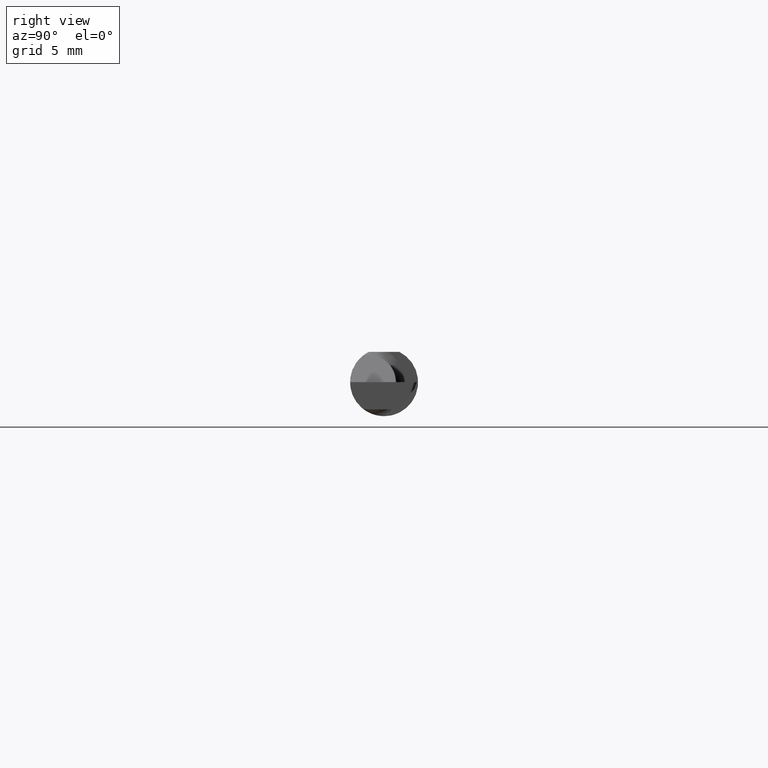
[diagram: clean part render]
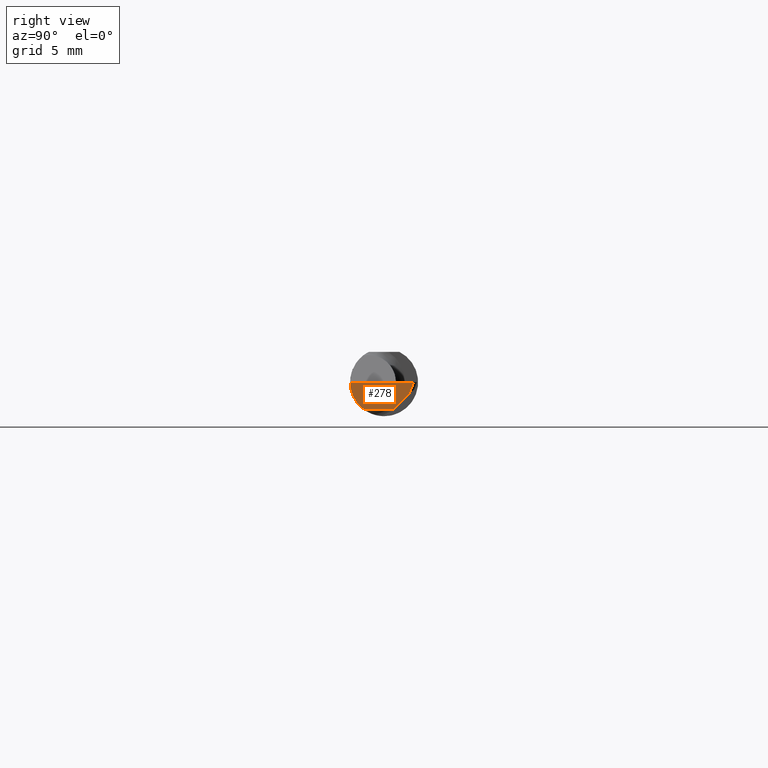
[diagram: same view with one face highlighted and labeled with its STEP entity id]
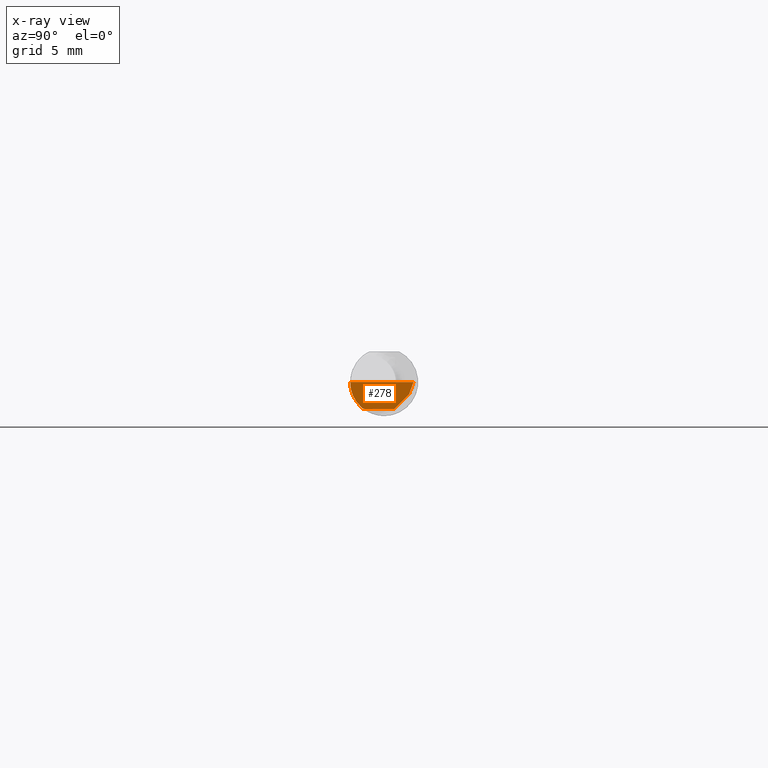
[diagram: x-ray of the same camera — body ghosted, the highlighted face saturated]
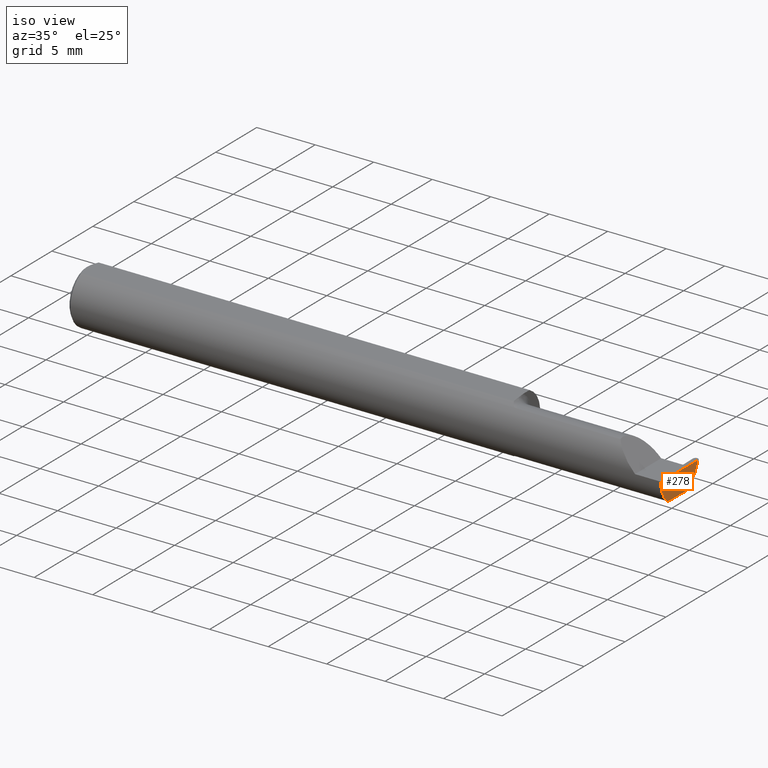
[diagram: same view with one face highlighted and labeled with its STEP entity id]
A machine part, right view. The second image highlights one B-rep face of the part: STEP entity #278.
The next image is the same camera in x-ray: the body ghosted, the highlighted face saturated — about 0% of this face is hidden behind the body in this view.
A second angle (iso view) of the same face is appended — the face is thin or edge-on in the first view.
In plain terms, the highlighted planar face has unit normal (-0.9992, 0.0174, 0.0349).
Its self-contained STEP definition (entity closure, byte-faithful):
#22 = FACE_OUTER_BOUND ( 'NONE', #651, .T. ) ;
#23 = EDGE_CURVE ( 'NONE', #565, #394, #87, .T. ) ;
#28 = VERTEX_POINT ( 'NONE', #691 ) ;
#33 = CARTESIAN_POINT ( 'NONE',  ( 1.996436576927335116, 0.02748456554894272708, -0.07500000000000002498 ) ) ;
#52 = DIRECTION ( 'NONE',  ( -0.03701368837992445593, -0.7066222423871552083, -0.7066222423871628688 ) ) ;
#55 = CARTESIAN_POINT ( 'NONE',  ( 1.996630704565214964, 0.03119062438263837597, -0.07129394116630433098 ) ) ;
#66 = DIRECTION ( 'NONE',  ( -0.01745240643727645827, -0.9998476951563912696, 0.000000000000000000 ) ) ;
#83 =( BOUNDED_CURVE ( )  B_SPLINE_CURVE ( 3, ( #108, #112, #445, #554 ),
 .UNSPECIFIED., .F., .T. ) 
 B_SPLINE_CURVE_WITH_KNOTS ( ( 4, 4 ),
 ( 0.2063001339125308253, 1.107331509589561058 ),
 .UNSPECIFIED. ) 
 CURVE ( )  GEOMETRIC_REPRESENTATION_ITEM ( )  RATIONAL_B_SPLINE_CURVE ( ( 1.000000000000000000, 0.9334817841311873199, 0.9334817841311873199, 1.000000000000000000 ) ) 
 REPRESENTATION_ITEM ( '' )  );
#87 =( BOUNDED_CURVE ( )  B_SPLINE_CURVE ( 3, ( #168, #262, #321, #92 ),
 .UNSPECIFIED., .F., .T. ) 
 B_SPLINE_CURVE_WITH_KNOTS ( ( 4, 4 ),
 ( 0.2552020043920813497, 0.4634648172053402182 ),
 .UNSPECIFIED. ) 
 CURVE ( )  GEOMETRIC_REPRESENTATION_ITEM ( )  RATIONAL_B_SPLINE_CURVE ( ( 1.000000000000000000, 0.9963888149483994816, 0.9963888149483994816, 1.000000000000000000 ) ) 
 REPRESENTATION_ITEM ( '' )  );
#92 = CARTESIAN_POINT ( 'NONE',  ( 1.995213246285213016, -0.04259999999999973530, -0.07500000000000002498 ) ) ;
#108 = CARTESIAN_POINT ( 'NONE',  ( 1.994999172194938941, -0.05810704225352106983, -0.07337936794867833123 ) ) ;
#112 = CARTESIAN_POINT ( 'NONE',  ( 1.995231968854677573, -0.08092595952420823802, -0.05530971394246247952 ) ) ;
#114 = ORIENTED_EDGE ( 'NONE', *, *, #504, .F. ) ;
#124 = CARTESIAN_POINT ( 'NONE',  ( 1.994999172194938941, -0.05810704225352106983, -0.07337936794867833123 ) ) ;
#127 = EDGE_CURVE ( 'NONE', #565, #28, #83, .T. ) ;
#168 = CARTESIAN_POINT ( 'NONE',  ( 1.994999172194938941, -0.05810704225352106983, -0.07337936794867833123 ) ) ;
#191 = DIRECTION ( 'NONE',  ( 0.03876062227022340767, 0.3417631236437464470, 0.9389864650134710500 ) ) ;
#197 = CARTESIAN_POINT ( 'NONE',  ( 1.998599639583657162, 0.06877923926384967024, -0.03370532628509262385 ) ) ;
#211 = VERTEX_POINT ( 'NONE', #197 ) ;
#231 = VERTEX_POINT ( 'NONE', #620 ) ;
#247 = CARTESIAN_POINT ( 'NONE',  ( 1.999998665932175124, 0.08148793596879662371, 0.000000000000000000 ) ) ;
#262 = CARTESIAN_POINT ( 'NONE',  ( 1.995050583981878400, -0.05300374992736046897, -0.07445783144524575903 ) ) ;
#278 = ADVANCED_FACE ( 'NONE', ( #22 ), #526, .F. ) ;
#281 = VECTOR ( 'NONE', #66, 39.37007874015748143 ) ;
#284 = VERTEX_POINT ( 'NONE', #33 ) ;
#301 = EDGE_CURVE ( 'NONE', #211, #231, #673, .T. ) ;
#310 = DIRECTION ( 'NONE',  ( -0.9992386149554827179, 0.01744177490282310811, 0.03489949670250104552 ) ) ;
#313 = ORIENTED_EDGE ( 'NONE', *, *, #301, .T. ) ;
#321 = CARTESIAN_POINT ( 'NONE',  ( 1.995122200632949427, -0.04781600192481511025, -0.07500000000000003886 ) ) ;
#343 = VECTOR ( 'NONE', #583, 39.37007874015748854 ) ;
#345 = ORIENTED_EDGE ( 'NONE', *, *, #127, .F. ) ;
#346 = CARTESIAN_POINT ( 'NONE',  ( 1.999998665932175124, 0.08148793596879662371, 0.000000000000000000 ) ) ;
#394 = VERTEX_POINT ( 'NONE', #695 ) ;
#406 = VECTOR ( 'NONE', #191, 39.37007874015748854 ) ;
#445 = CARTESIAN_POINT ( 'NONE',  ( 1.995925902212489333, -0.09359999999999997489, -0.02910696448121682933 ) ) ;
#452 = AXIS2_PLACEMENT_3D ( 'NONE', #247, #310, #623 ) ;
#483 = EDGE_CURVE ( 'NONE', #284, #394, #640, .T. ) ;
#495 = ORIENTED_EDGE ( 'NONE', *, *, #483, .F. ) ;
#504 = EDGE_CURVE ( 'NONE', #211, #284, #680, .T. ) ;
#506 = LINE ( 'NONE', #346, #281 ) ;
#524 = CARTESIAN_POINT ( 'NONE',  ( 1.999996821881227627, 0.08109858189432714304, 0.0001417894146689500229 ) ) ;
#526 = PLANE ( 'NONE',  #452 ) ;
#534 = ORIENTED_EDGE ( 'NONE', *, *, #23, .T. ) ;
#554 = CARTESIAN_POINT ( 'NONE',  ( 1.996942494641693600, -0.09360000000000001652, 0.000000000000000000 ) ) ;
#565 = VERTEX_POINT ( 'NONE', #124 ) ;
#581 = EDGE_CURVE ( 'NONE', #231, #28, #506, .T. ) ;
#583 = DIRECTION ( 'NONE',  ( -0.01745240643727645827, -0.9998476951563912696, 0.000000000000000000 ) ) ;
#591 = CARTESIAN_POINT ( 'NONE',  ( 1.995250001108639148, -0.04049431757617882877, -0.07500000000000002498 ) ) ;
#597 = ORIENTED_EDGE ( 'NONE', *, *, #581, .T. ) ;
#620 = CARTESIAN_POINT ( 'NONE',  ( 1.999990968925781987, 0.08104697476785363564, 0.000000000000000000 ) ) ;
#623 = DIRECTION ( 'NONE',  ( 0.03490480639812536257, 0.000000000000000000, 0.9993906415863165194 ) ) ;
#627 = VECTOR ( 'NONE', #52, 39.37007874015748143 ) ;
#640 = LINE ( 'NONE', #591, #343 ) ;
#651 = EDGE_LOOP ( 'NONE', ( #114, #313, #597, #345, #534, #495 ) ) ;
#673 = LINE ( 'NONE', #524, #406 ) ;
#680 = LINE ( 'NONE', #55, #627 ) ;
#691 = CARTESIAN_POINT ( 'NONE',  ( 1.996942494641693600, -0.09360000000000001652, 0.000000000000000000 ) ) ;
#695 = CARTESIAN_POINT ( 'NONE',  ( 1.995213246285213016, -0.04259999999999973530, -0.07500000000000002498 ) ) ;